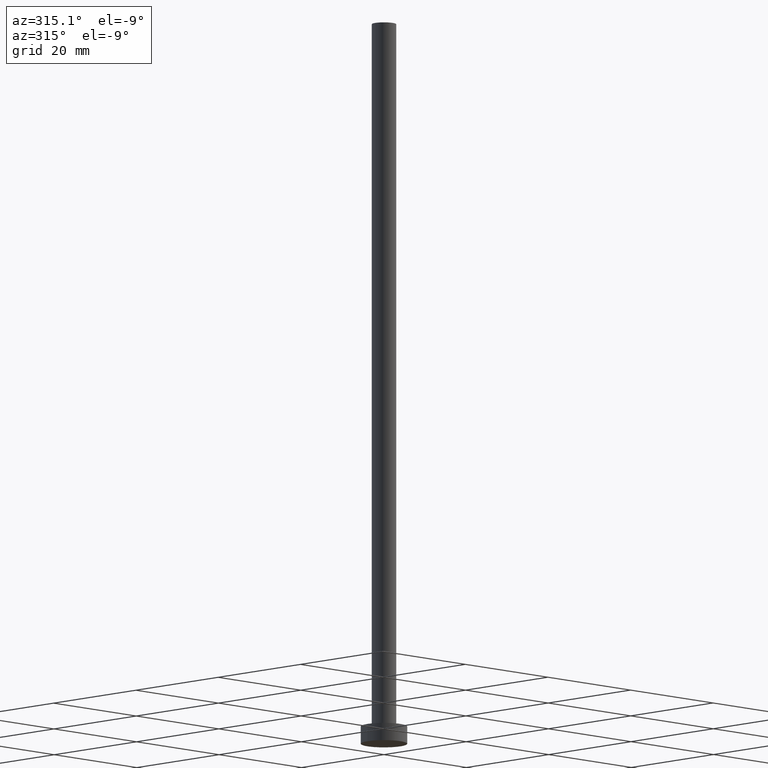
[diagram: clean part render]
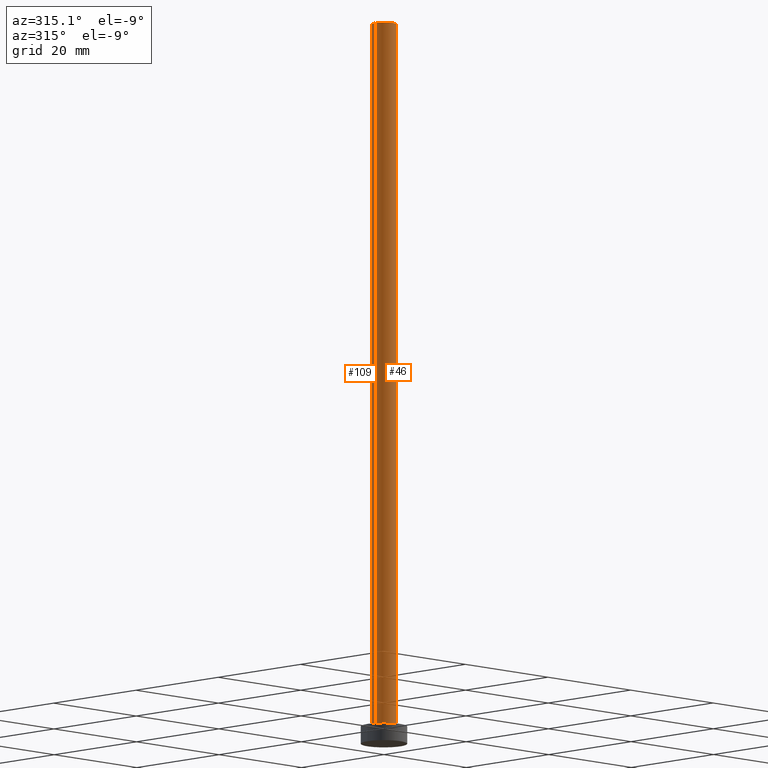
[diagram: same view with one multi-face feature highlighted, each face labeled with its STEP entity id]
A machine part, auxiliary view. The highlighted faces form ONE feature: a constant-radius fillet chain: 2 tangent blend faces with common blend radius 2.1 mm. The faces share edges in the B-rep.
Their STEP definitions:
[1] entity #46 (Cylinder):
#4 = VECTOR ( 'NONE', #52, 1000.000000000000000 ) ;
#11 = CARTESIAN_POINT ( 'NONE',  ( -2.100000000000000089, 0.000000000000000000, 3.000000000000000000 ) ) ;
#19 = AXIS2_PLACEMENT_3D ( 'NONE', #34, #110, #214 ) ;
#21 = EDGE_CURVE ( 'NONE', #139, #140, #204, .T. ) ;
#22 = CIRCLE ( 'NONE', #19, 2.100000000000000089 ) ;
#34 = CARTESIAN_POINT ( 'NONE',  ( 0.000000000000000000, 0.000000000000000000, 3.000000000000000000 ) ) ;
#40 = ORIENTED_EDGE ( 'NONE', *, *, #21, .F. ) ;
#46 = ADVANCED_FACE ( 'NONE', ( #148 ), #215, .T. ) ;
#52 = DIRECTION ( 'NONE',  ( -0.000000000000000000, -0.000000000000000000, -1.000000000000000000 ) ) ;
#55 = CARTESIAN_POINT ( 'NONE',  ( 0.000000000000000000, 0.000000000000000000, 125.0000000000000000 ) ) ;
#59 = EDGE_LOOP ( 'NONE', ( #222, #40, #157, #221 ) ) ;
#61 = VERTEX_POINT ( 'NONE', #153 ) ;
#69 = CARTESIAN_POINT ( 'NONE',  ( 2.100000000000000089, 2.571758278209441464E-16, 125.0000000000000000 ) ) ;
#74 = DIRECTION ( 'NONE',  ( -1.000000000000000000, 0.000000000000000000, 0.000000000000000000 ) ) ;
#91 = CARTESIAN_POINT ( 'NONE',  ( 2.100000000000000089, 2.571758278209441464E-16, 125.0000000000000000 ) ) ;
#110 = DIRECTION ( 'NONE',  ( 0.000000000000000000, 0.000000000000000000, 1.000000000000000000 ) ) ;
#114 = EDGE_CURVE ( 'NONE', #238, #61, #22, .T. ) ;
#129 = LINE ( 'NONE', #91, #185 ) ;
#132 = DIRECTION ( 'NONE',  ( 0.000000000000000000, 0.000000000000000000, 1.000000000000000000 ) ) ;
#134 = CARTESIAN_POINT ( 'NONE',  ( 0.000000000000000000, 0.000000000000000000, 125.0000000000000000 ) ) ;
#139 = VERTEX_POINT ( 'NONE', #250 ) ;
#140 = VERTEX_POINT ( 'NONE', #69 ) ;
#146 = DIRECTION ( 'NONE',  ( -0.000000000000000000, -0.000000000000000000, -1.000000000000000000 ) ) ;
#148 = FACE_OUTER_BOUND ( 'NONE', #59, .T. ) ;
#149 = CARTESIAN_POINT ( 'NONE',  ( -2.100000000000000089, 0.000000000000000000, 125.0000000000000000 ) ) ;
#153 = CARTESIAN_POINT ( 'NONE',  ( 2.100000000000000089, 2.571758278209441464E-16, 3.000000000000000000 ) ) ;
#157 = ORIENTED_EDGE ( 'NONE', *, *, #213, .T. ) ;
#167 = LINE ( 'NONE', #149, #4 ) ;
#185 = VECTOR ( 'NONE', #146, 1000.000000000000000 ) ;
#198 = DIRECTION ( 'NONE',  ( -0.000000000000000000, -0.000000000000000000, -1.000000000000000000 ) ) ;
#204 = CIRCLE ( 'NONE', #224, 2.100000000000000089 ) ;
#213 = EDGE_CURVE ( 'NONE', #139, #238, #167, .T. ) ;
#214 = DIRECTION ( 'NONE',  ( 1.000000000000000000, 0.000000000000000000, 0.000000000000000000 ) ) ;
#215 = CYLINDRICAL_SURFACE ( 'NONE', #247, 2.100000000000000089 ) ;
#221 = ORIENTED_EDGE ( 'NONE', *, *, #114, .T. ) ;
#222 = ORIENTED_EDGE ( 'NONE', *, *, #237, .F. ) ;
#224 = AXIS2_PLACEMENT_3D ( 'NONE', #55, #132, #255 ) ;
#237 = EDGE_CURVE ( 'NONE', #140, #61, #129, .T. ) ;
#238 = VERTEX_POINT ( 'NONE', #11 ) ;
#247 = AXIS2_PLACEMENT_3D ( 'NONE', #134, #198, #74 ) ;
#250 = CARTESIAN_POINT ( 'NONE',  ( -2.100000000000000089, 0.000000000000000000, 125.0000000000000000 ) ) ;
#255 = DIRECTION ( 'NONE',  ( 1.000000000000000000, 0.000000000000000000, 0.000000000000000000 ) ) ;
[2] entity #109 (Cylinder):
#3 = EDGE_CURVE ( 'NONE', #140, #139, #151, .T. ) ;
#4 = VECTOR ( 'NONE', #52, 1000.000000000000000 ) ;
#11 = CARTESIAN_POINT ( 'NONE',  ( -2.100000000000000089, 0.000000000000000000, 3.000000000000000000 ) ) ;
#31 = DIRECTION ( 'NONE',  ( 1.000000000000000000, 0.000000000000000000, 0.000000000000000000 ) ) ;
#51 = CYLINDRICAL_SURFACE ( 'NONE', #63, 2.100000000000000089 ) ;
#52 = DIRECTION ( 'NONE',  ( -0.000000000000000000, -0.000000000000000000, -1.000000000000000000 ) ) ;
#57 = DIRECTION ( 'NONE',  ( 0.000000000000000000, 0.000000000000000000, 1.000000000000000000 ) ) ;
#61 = VERTEX_POINT ( 'NONE', #153 ) ;
#63 = AXIS2_PLACEMENT_3D ( 'NONE', #88, #166, #211 ) ;
#65 = EDGE_CURVE ( 'NONE', #61, #238, #197, .T. ) ;
#69 = CARTESIAN_POINT ( 'NONE',  ( 2.100000000000000089, 2.571758278209441464E-16, 125.0000000000000000 ) ) ;
#88 = CARTESIAN_POINT ( 'NONE',  ( 0.000000000000000000, 0.000000000000000000, 125.0000000000000000 ) ) ;
#90 = FACE_OUTER_BOUND ( 'NONE', #135, .T. ) ;
#91 = CARTESIAN_POINT ( 'NONE',  ( 2.100000000000000089, 2.571758278209441464E-16, 125.0000000000000000 ) ) ;
#99 = AXIS2_PLACEMENT_3D ( 'NONE', #217, #196, #31 ) ;
#106 = DIRECTION ( 'NONE',  ( 1.000000000000000000, 0.000000000000000000, 0.000000000000000000 ) ) ;
#109 = ADVANCED_FACE ( 'NONE', ( #90 ), #51, .T. ) ;
#124 = AXIS2_PLACEMENT_3D ( 'NONE', #236, #57, #106 ) ;
#129 = LINE ( 'NONE', #91, #185 ) ;
#135 = EDGE_LOOP ( 'NONE', ( #226, #179, #235, #177 ) ) ;
#139 = VERTEX_POINT ( 'NONE', #250 ) ;
#140 = VERTEX_POINT ( 'NONE', #69 ) ;
#146 = DIRECTION ( 'NONE',  ( -0.000000000000000000, -0.000000000000000000, -1.000000000000000000 ) ) ;
#149 = CARTESIAN_POINT ( 'NONE',  ( -2.100000000000000089, 0.000000000000000000, 125.0000000000000000 ) ) ;
#151 = CIRCLE ( 'NONE', #99, 2.100000000000000089 ) ;
#153 = CARTESIAN_POINT ( 'NONE',  ( 2.100000000000000089, 2.571758278209441464E-16, 3.000000000000000000 ) ) ;
#166 = DIRECTION ( 'NONE',  ( -0.000000000000000000, -0.000000000000000000, -1.000000000000000000 ) ) ;
#167 = LINE ( 'NONE', #149, #4 ) ;
#177 = ORIENTED_EDGE ( 'NONE', *, *, #213, .F. ) ;
#179 = ORIENTED_EDGE ( 'NONE', *, *, #237, .T. ) ;
#185 = VECTOR ( 'NONE', #146, 1000.000000000000000 ) ;
#196 = DIRECTION ( 'NONE',  ( 0.000000000000000000, 0.000000000000000000, 1.000000000000000000 ) ) ;
#197 = CIRCLE ( 'NONE', #124, 2.100000000000000089 ) ;
#211 = DIRECTION ( 'NONE',  ( -1.000000000000000000, 0.000000000000000000, 0.000000000000000000 ) ) ;
#213 = EDGE_CURVE ( 'NONE', #139, #238, #167, .T. ) ;
#217 = CARTESIAN_POINT ( 'NONE',  ( 0.000000000000000000, 0.000000000000000000, 125.0000000000000000 ) ) ;
#226 = ORIENTED_EDGE ( 'NONE', *, *, #3, .F. ) ;
#235 = ORIENTED_EDGE ( 'NONE', *, *, #65, .T. ) ;
#236 = CARTESIAN_POINT ( 'NONE',  ( 0.000000000000000000, 0.000000000000000000, 3.000000000000000000 ) ) ;
#237 = EDGE_CURVE ( 'NONE', #140, #61, #129, .T. ) ;
#238 = VERTEX_POINT ( 'NONE', #11 ) ;
#250 = CARTESIAN_POINT ( 'NONE',  ( -2.100000000000000089, 0.000000000000000000, 125.0000000000000000 ) ) ;